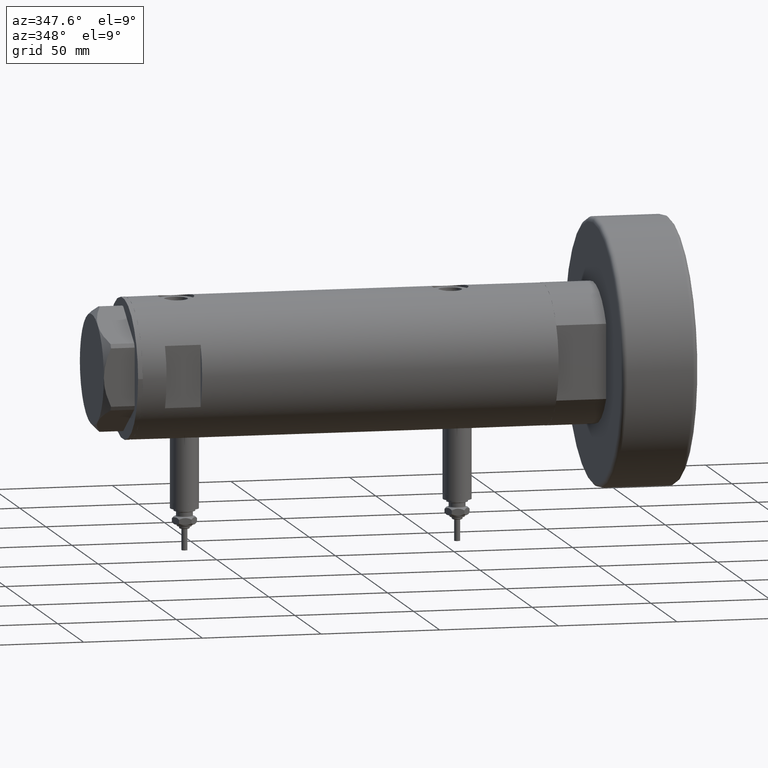
[diagram: clean part render]
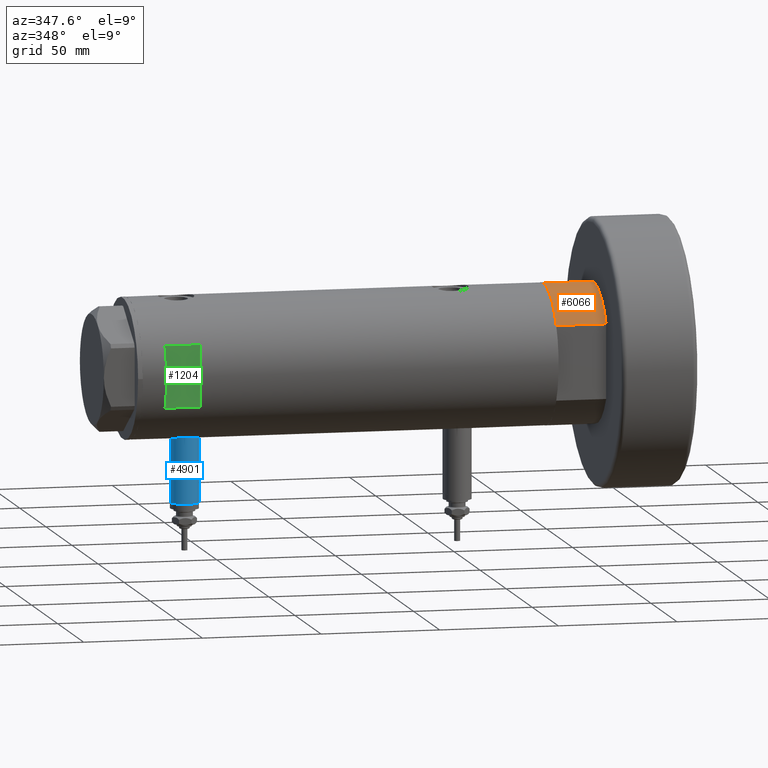
[diagram: same view with three faces highlighted in distinct colors, each labeled with its STEP entity id]
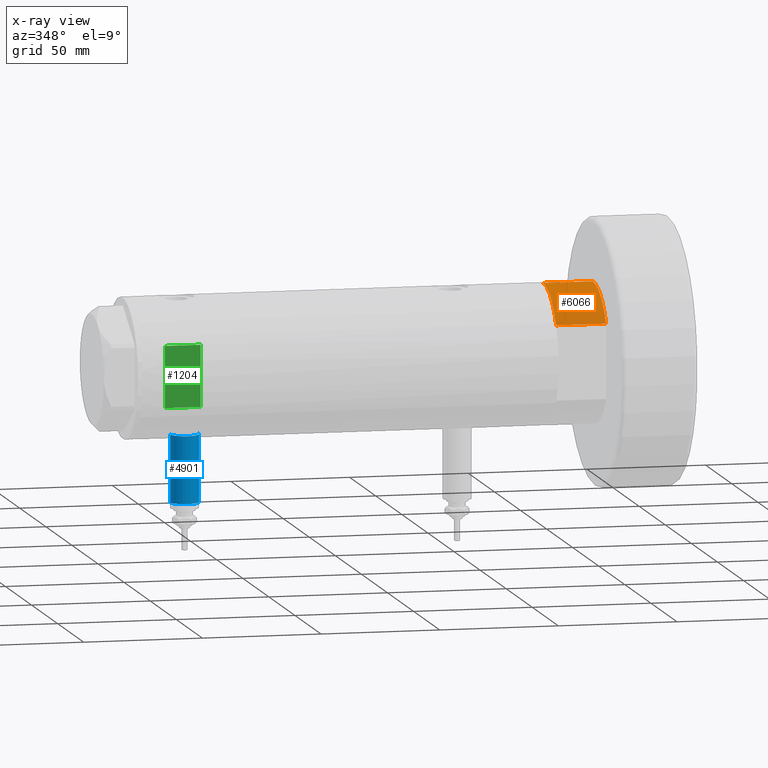
[diagram: x-ray of the same camera — body ghosted, the three highlighted faces saturated]
A machine part, auxiliary view with three faces highlighted in distinct colors.
The next image is the same camera in x-ray (body ghosted, the three faces saturated) — at least one of them is partly hidden behind the body in this view.
Their STEP definitions:

[orange] entity #6066 — the highlighted cylindrical surface (partial cylindrical patch) has radius 29.5 mm, axis along (-1, -0, 0).
#257 = VECTOR ( 'NONE', #427, 1000.000000000000000 ) ;
#301 = CARTESIAN_POINT ( 'NONE',  ( -15.66045976336583045, -24.99999999999999645, 20.99999999999999645 ) ) ;
#427 = DIRECTION ( 'NONE',  ( -0.000000000000000000, -0.000000000000000000, 1.000000000000000000 ) ) ;
#540 = EDGE_CURVE ( 'NONE', #4231, #4512, #1978, .T. ) ;
#729 = ORIENTED_EDGE ( 'NONE', *, *, #3803, .F. ) ;
#905 = CYLINDRICAL_SURFACE ( 'NONE', #2424, 29.50000000000000355 ) ;
#1430 = CARTESIAN_POINT ( 'NONE',  ( -15.66045976336583401, -25.00000000000000000, 0.000000000000000000 ) ) ;
#1616 = EDGE_CURVE ( 'NONE', #4512, #2435, #3999, .T. ) ;
#1876 = LINE ( 'NONE', #1430, #257 ) ;
#1978 = LINE ( 'NONE', #4957, #3920 ) ;
#2067 = EDGE_LOOP ( 'NONE', ( #729, #4280, #4488, #2871 ) ) ;
#2167 = DIRECTION ( 'NONE',  ( 1.000000000000000000, 0.000000000000000000, 0.000000000000000000 ) ) ;
#2424 = AXIS2_PLACEMENT_3D ( 'NONE', #6219, #4789, #3363 ) ;
#2435 = VERTEX_POINT ( 'NONE', #4784 ) ;
#2473 = CARTESIAN_POINT ( 'NONE',  ( 0.000000000000000000, 0.000000000000000000, 21.00000000000000000 ) ) ;
#2826 = DIRECTION ( 'NONE',  ( 0.000000000000000000, 0.000000000000000000, 1.000000000000000000 ) ) ;
#2871 = ORIENTED_EDGE ( 'NONE', *, *, #3772, .T. ) ;
#2946 = CARTESIAN_POINT ( 'NONE',  ( -29.50000000000000355, 0.000000000000000000, 21.00000000000000000 ) ) ;
#3027 = CARTESIAN_POINT ( 'NONE',  ( 0.000000000000000000, 0.000000000000000000, 0.000000000000000000 ) ) ;
#3363 = DIRECTION ( 'NONE',  ( -1.000000000000000000, 0.000000000000000000, 0.000000000000000000 ) ) ;
#3421 = AXIS2_PLACEMENT_3D ( 'NONE', #2473, #2826, #5298 ) ;
#3665 = VERTEX_POINT ( 'NONE', #301 ) ;
#3772 = EDGE_CURVE ( 'NONE', #2435, #3665, #1876, .T. ) ;
#3803 = EDGE_CURVE ( 'NONE', #4231, #3665, #6164, .T. ) ;
#3920 = VECTOR ( 'NONE', #5907, 1000.000000000000000 ) ;
#3999 = CIRCLE ( 'NONE', #4120, 29.50000000000000355 ) ;
#4031 = DIRECTION ( 'NONE',  ( 0.000000000000000000, 0.000000000000000000, 1.000000000000000000 ) ) ;
#4044 = CARTESIAN_POINT ( 'NONE',  ( -29.50000000000000355, 0.000000000000000000, 0.000000000000000000 ) ) ;
#4120 = AXIS2_PLACEMENT_3D ( 'NONE', #3027, #4031, #2167 ) ;
#4231 = VERTEX_POINT ( 'NONE', #2946 ) ;
#4280 = ORIENTED_EDGE ( 'NONE', *, *, #540, .T. ) ;
#4488 = ORIENTED_EDGE ( 'NONE', *, *, #1616, .T. ) ;
#4512 = VERTEX_POINT ( 'NONE', #4044 ) ;
#4784 = CARTESIAN_POINT ( 'NONE',  ( -15.66045976336582690, -25.00000000000000000, 0.000000000000000000 ) ) ;
#4789 = DIRECTION ( 'NONE',  ( -0.000000000000000000, -0.000000000000000000, -1.000000000000000000 ) ) ;
#4957 = CARTESIAN_POINT ( 'NONE',  ( -29.50000000000000355, 0.000000000000000000, 21.00000000000000000 ) ) ;
#5298 = DIRECTION ( 'NONE',  ( 1.000000000000000000, 0.000000000000000000, 0.000000000000000000 ) ) ;
#5907 = DIRECTION ( 'NONE',  ( -0.000000000000000000, -0.000000000000000000, -1.000000000000000000 ) ) ;
#6066 = ADVANCED_FACE ( 'NONE', ( #6156 ), #905, .T. ) ;
#6156 = FACE_OUTER_BOUND ( 'NONE', #2067, .T. ) ;
#6164 = CIRCLE ( 'NONE', #3421, 29.50000000000000355 ) ;
#6219 = CARTESIAN_POINT ( 'NONE',  ( 0.000000000000000000, 0.000000000000000000, 21.00000000000000000 ) ) ;

[blue] entity #4901 — the highlighted cylindrical surface (edge-blend (fillet) strip) has radius 6 mm, axis along (0, 0, 1).
#298 = CARTESIAN_POINT ( 'NONE',  ( -28.30000000000000071, 0.000000000000000000, 63.59999999999998721 ) ) ;
#448 = ORIENTED_EDGE ( 'NONE', *, *, #1131, .T. ) ;
#896 = CYLINDRICAL_SURFACE ( 'NONE', #4236, 5.999999999999991118 ) ;
#955 = DIRECTION ( 'NONE',  ( 0.000000000000000000, 0.000000000000000000, -1.000000000000000000 ) ) ;
#1131 = EDGE_CURVE ( 'NONE', #3569, #4266, #5898, .T. ) ;
#2152 = ORIENTED_EDGE ( 'NONE', *, *, #2680, .T. ) ;
#2330 = ORIENTED_EDGE ( 'NONE', *, *, #3771, .F. ) ;
#2458 = EDGE_CURVE ( 'NONE', #4622, #3765, #4268, .T. ) ;
#2493 = AXIS2_PLACEMENT_3D ( 'NONE', #298, #5586, #4154 ) ;
#2497 = DIRECTION ( 'NONE',  ( 1.000000000000000000, -0.000000000000000000, -0.000000000000000000 ) ) ;
#2606 = CIRCLE ( 'NONE', #4429, 5.999999999999991118 ) ;
#2680 = EDGE_CURVE ( 'NONE', #4266, #3765, #3097, .T. ) ;
#2739 = EDGE_LOOP ( 'NONE', ( #3057, #2330, #448, #2152 ) ) ;
#2815 = CARTESIAN_POINT ( 'NONE',  ( -28.30000000000000071, 0.000000000000000000, 57.60000000000000142 ) ) ;
#2857 = DIRECTION ( 'NONE',  ( 0.000000000000000000, 0.000000000000000000, 1.000000000000000000 ) ) ;
#3057 = ORIENTED_EDGE ( 'NONE', *, *, #2458, .F. ) ;
#3097 = CIRCLE ( 'NONE', #2493, 5.999999999999991118 ) ;
#3569 = VERTEX_POINT ( 'NONE', #3648 ) ;
#3648 = CARTESIAN_POINT ( 'NONE',  ( -56.60000000000000142, 0.000000000000000000, 57.60000000000000142 ) ) ;
#3745 = VECTOR ( 'NONE', #2497, 1000.000000000000000 ) ;
#3765 = VERTEX_POINT ( 'NONE', #4348 ) ;
#3771 = EDGE_CURVE ( 'NONE', #3569, #4622, #2606, .T. ) ;
#3836 = DIRECTION ( 'NONE',  ( -1.000000000000000000, 0.000000000000000000, 0.000000000000000000 ) ) ;
#3897 = CARTESIAN_POINT ( 'NONE',  ( -56.60000000000000142, 0.000000000000000000, 63.59999999999998721 ) ) ;
#4154 = DIRECTION ( 'NONE',  ( 0.000000000000000000, 0.000000000000000000, 1.000000000000000000 ) ) ;
#4236 = AXIS2_PLACEMENT_3D ( 'NONE', #4298, #5823, #955 ) ;
#4266 = VERTEX_POINT ( 'NONE', #2815 ) ;
#4268 = LINE ( 'NONE', #4811, #5124 ) ;
#4298 = CARTESIAN_POINT ( 'NONE',  ( -56.60000000000000142, 0.000000000000000000, 63.59999999999998721 ) ) ;
#4348 = CARTESIAN_POINT ( 'NONE',  ( -28.30000000000000071, 7.347880794884101001E-16, 69.59999999999998010 ) ) ;
#4429 = AXIS2_PLACEMENT_3D ( 'NONE', #3897, #3836, #2857 ) ;
#4616 = CARTESIAN_POINT ( 'NONE',  ( -56.60000000000000142, 7.347880794884101001E-16, 69.59999999999998010 ) ) ;
#4622 = VERTEX_POINT ( 'NONE', #4616 ) ;
#4811 = CARTESIAN_POINT ( 'NONE',  ( -56.60000000000000142, 7.347880794884104945E-16, 69.59999999999998010 ) ) ;
#4901 = ADVANCED_FACE ( 'NONE', ( #5312 ), #896, .T. ) ;
#5124 = VECTOR ( 'NONE', #5730, 1000.000000000000000 ) ;
#5312 = FACE_OUTER_BOUND ( 'NONE', #2739, .T. ) ;
#5356 = CARTESIAN_POINT ( 'NONE',  ( -56.60000000000000142, 0.000000000000000000, 57.60000000000000142 ) ) ;
#5586 = DIRECTION ( 'NONE',  ( -1.000000000000000000, 0.000000000000000000, 0.000000000000000000 ) ) ;
#5730 = DIRECTION ( 'NONE',  ( 1.000000000000000000, -0.000000000000000000, -0.000000000000000000 ) ) ;
#5823 = DIRECTION ( 'NONE',  ( 1.000000000000000000, -0.000000000000000000, -0.000000000000000000 ) ) ;
#5898 = LINE ( 'NONE', #5356, #3745 ) ;

[green] entity #1204 — the highlighted planar face has unit normal (-0, 1, 0).
#61 = ORIENTED_EDGE ( 'NONE', *, *, #3302, .T. ) ;
#153 = DIRECTION ( 'NONE',  ( 1.000000000000000000, -0.000000000000000000, -0.000000000000000000 ) ) ;
#163 = ORIENTED_EDGE ( 'NONE', *, *, #1242, .F. ) ;
#177 = EDGE_CURVE ( 'NONE', #4939, #4916, #5566, .T. ) ;
#756 = DIRECTION ( 'NONE',  ( 0.000000000000000000, 0.000000000000000000, 1.000000000000000000 ) ) ;
#1119 = LINE ( 'NONE', #4907, #4834 ) ;
#1204 = ADVANCED_FACE ( 'NONE', ( #1995 ), #5832, .F. ) ;
#1242 = EDGE_CURVE ( 'NONE', #5311, #4916, #4887, .T. ) ;
#1335 = EDGE_LOOP ( 'NONE', ( #1930, #61, #3998, #163 ) ) ;
#1481 = DIRECTION ( 'NONE',  ( 0.000000000000000000, 1.000000000000000000, 0.000000000000000000 ) ) ;
#1930 = ORIENTED_EDGE ( 'NONE', *, *, #2721, .T. ) ;
#1995 = FACE_OUTER_BOUND ( 'NONE', #1335, .T. ) ;
#2094 = AXIS2_PLACEMENT_3D ( 'NONE', #3510, #1481, #3420 ) ;
#2332 = VERTEX_POINT ( 'NONE', #2439 ) ;
#2439 = CARTESIAN_POINT ( 'NONE',  ( -12.96148139681573319, -26.49999999999998934, 62.59999999999998721 ) ) ;
#2557 = CARTESIAN_POINT ( 'NONE',  ( -29.50000000000000355, -26.50000000000000355, 77.60000000000002274 ) ) ;
#2721 = EDGE_CURVE ( 'NONE', #5311, #2332, #5169, .T. ) ;
#3103 = CARTESIAN_POINT ( 'NONE',  ( -12.96148139681573319, -26.49999999999999645, -87.59999999999999432 ) ) ;
#3302 = EDGE_CURVE ( 'NONE', #2332, #4939, #1119, .T. ) ;
#3404 = VECTOR ( 'NONE', #6096, 1000.000000000000000 ) ;
#3420 = DIRECTION ( 'NONE',  ( 0.000000000000000000, -0.000000000000000000, 1.000000000000000000 ) ) ;
#3510 = CARTESIAN_POINT ( 'NONE',  ( -29.50000000000000355, -26.50000000000000355, 77.60000000000002274 ) ) ;
#3998 = ORIENTED_EDGE ( 'NONE', *, *, #177, .T. ) ;
#4483 = CARTESIAN_POINT ( 'NONE',  ( -12.96148139681573319, -26.49999999999998934, 77.60000000000002274 ) ) ;
#4495 = DIRECTION ( 'NONE',  ( 1.000000000000000000, -0.000000000000000000, -0.000000000000000000 ) ) ;
#4782 = CARTESIAN_POINT ( 'NONE',  ( 12.96148139681573319, -26.49999999999998934, 77.60000000000002274 ) ) ;
#4810 = CARTESIAN_POINT ( 'NONE',  ( 12.96148139681573319, -26.49999999999998934, 62.59999999999998721 ) ) ;
#4834 = VECTOR ( 'NONE', #153, 1000.000000000000000 ) ;
#4887 = LINE ( 'NONE', #2557, #5846 ) ;
#4907 = CARTESIAN_POINT ( 'NONE',  ( -29.50000000000000355, -26.50000000000000355, 62.60000000000001563 ) ) ;
#4916 = VERTEX_POINT ( 'NONE', #4782 ) ;
#4939 = VERTEX_POINT ( 'NONE', #4810 ) ;
#5139 = VECTOR ( 'NONE', #756, 1000.000000000000000 ) ;
#5169 = LINE ( 'NONE', #3103, #3404 ) ;
#5311 = VERTEX_POINT ( 'NONE', #4483 ) ;
#5566 = LINE ( 'NONE', #5623, #5139 ) ;
#5623 = CARTESIAN_POINT ( 'NONE',  ( 12.96148139681573319, -26.49999999999999645, -87.59999999999999432 ) ) ;
#5832 = PLANE ( 'NONE',  #2094 ) ;
#5846 = VECTOR ( 'NONE', #4495, 1000.000000000000000 ) ;
#6096 = DIRECTION ( 'NONE',  ( -0.000000000000000000, -0.000000000000000000, -1.000000000000000000 ) ) ;